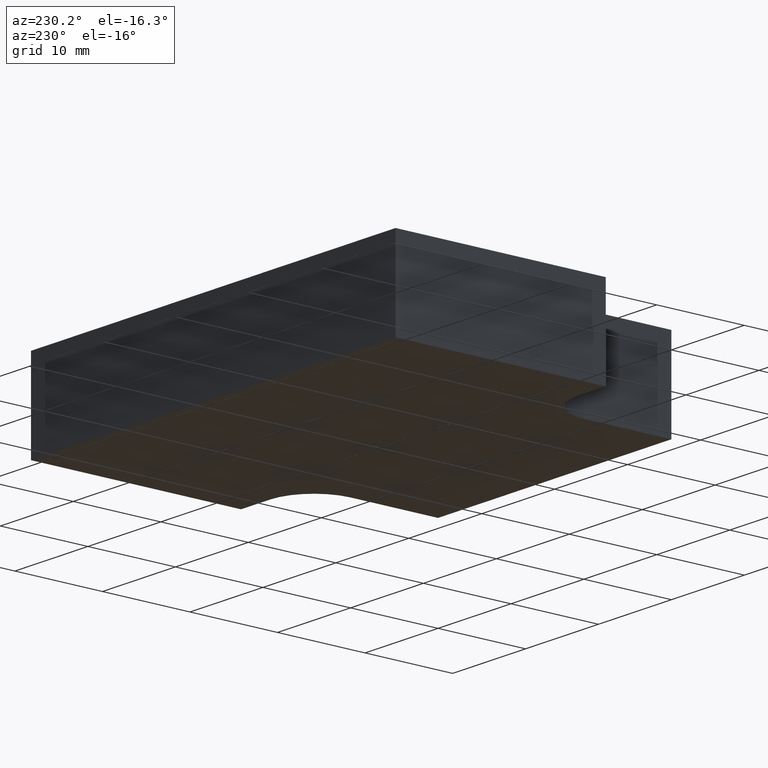
[diagram: clean part render]
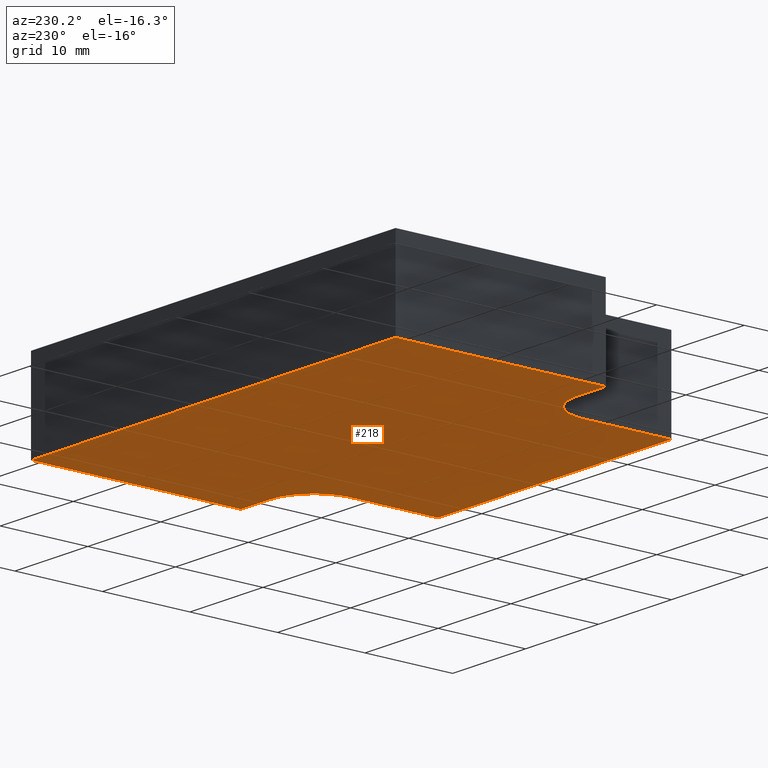
[diagram: same view with one face highlighted and labeled with its STEP entity id]
A machine part, auxiliary view. The second image highlights one B-rep face of the part: STEP entity #218.
In plain terms, the highlighted planar face has unit normal (0, 0, 1).
Its self-contained STEP definition (entity closure, byte-faithful):
#18=FACE_OUTER_BOUND('',#30,.T.);
#30=EDGE_LOOP('',(#148,#149,#150,#151,#152,#153,#154,#155,#156,#157));
#42=CIRCLE('',#254,5.);
#43=CIRCLE('',#255,5.);
#46=LINE('',#333,#72);
#47=LINE('',#335,#73);
#48=LINE('',#337,#74);
#49=LINE('',#339,#75);
#50=LINE('',#343,#76);
#51=LINE('',#345,#77);
#52=LINE('',#347,#78);
#53=LINE('',#350,#79);
#72=VECTOR('',#273,10.);
#73=VECTOR('',#274,10.);
#74=VECTOR('',#275,10.);
#75=VECTOR('',#276,10.);
#76=VECTOR('',#279,10.);
#77=VECTOR('',#280,10.);
#78=VECTOR('',#281,10.);
#79=VECTOR('',#284,10.);
#98=VERTEX_POINT('',#331);
#99=VERTEX_POINT('',#332);
#100=VERTEX_POINT('',#334);
#101=VERTEX_POINT('',#336);
#102=VERTEX_POINT('',#338);
#103=VERTEX_POINT('',#340);
#104=VERTEX_POINT('',#342);
#105=VERTEX_POINT('',#344);
#106=VERTEX_POINT('',#346);
#107=VERTEX_POINT('',#348);
#118=EDGE_CURVE('',#98,#99,#46,.T.);
#119=EDGE_CURVE('',#100,#98,#47,.T.);
#120=EDGE_CURVE('',#101,#100,#48,.T.);
#121=EDGE_CURVE('',#102,#101,#49,.T.);
#122=EDGE_CURVE('',#103,#102,#42,.T.);
#123=EDGE_CURVE('',#104,#103,#50,.T.);
#124=EDGE_CURVE('',#105,#104,#51,.T.);
#125=EDGE_CURVE('',#106,#105,#52,.T.);
#126=EDGE_CURVE('',#107,#106,#43,.T.);
#127=EDGE_CURVE('',#99,#107,#53,.T.);
#148=ORIENTED_EDGE('',*,*,#118,.F.);
#149=ORIENTED_EDGE('',*,*,#119,.F.);
#150=ORIENTED_EDGE('',*,*,#120,.F.);
#151=ORIENTED_EDGE('',*,*,#121,.F.);
#152=ORIENTED_EDGE('',*,*,#122,.F.);
#153=ORIENTED_EDGE('',*,*,#123,.F.);
#154=ORIENTED_EDGE('',*,*,#124,.F.);
#155=ORIENTED_EDGE('',*,*,#125,.F.);
#156=ORIENTED_EDGE('',*,*,#126,.F.);
#157=ORIENTED_EDGE('',*,*,#127,.F.);
#208=PLANE('',#253);
#218=ADVANCED_FACE('',(#18),#208,.F.);
#253=AXIS2_PLACEMENT_3D('',#330,#271,#272);
#254=AXIS2_PLACEMENT_3D('',#341,#277,#278);
#255=AXIS2_PLACEMENT_3D('',#349,#282,#283);
#271=DIRECTION('center_axis',(0.,0.,1.));
#272=DIRECTION('ref_axis',(1.,0.,0.));
#273=DIRECTION('',(0.,-1.,0.));
#274=DIRECTION('',(-1.,1.77635683940025E-16,0.));
#275=DIRECTION('',(0.,1.,0.));
#276=DIRECTION('',(1.,0.,0.));
#277=DIRECTION('center_axis',(0.,0.,-1.));
#278=DIRECTION('ref_axis',(-8.88178419700125E-16,1.,0.));
#279=DIRECTION('',(2.22044604925031E-16,1.,0.));
#280=DIRECTION('',(1.,-1.22464679914735E-16,0.));
#281=DIRECTION('',(2.22044604925031E-16,-1.,0.));
#282=DIRECTION('center_axis',(0.,0.,-1.));
#283=DIRECTION('ref_axis',(1.,2.22044604925031E-16,0.));
#284=DIRECTION('',(1.,0.,0.));
#330=CARTESIAN_POINT('Origin',(0.,21.1389886801068,-5.));
#331=CARTESIAN_POINT('',(-25.,39.,-5.));
#332=CARTESIAN_POINT('',(-25.,15.,-5.));
#333=CARTESIAN_POINT('',(-25.,15.,-5.));
#334=CARTESIAN_POINT('',(25.,39.,-5.));
#335=CARTESIAN_POINT('',(-25.,39.,-5.));
#336=CARTESIAN_POINT('',(25.,15.,-5.));
#337=CARTESIAN_POINT('',(25.,39.,-5.));
#338=CARTESIAN_POINT('',(21.,15.,-5.));
#339=CARTESIAN_POINT('',(25.,15.,-5.));
#340=CARTESIAN_POINT('',(16.,10.,-5.));
#341=CARTESIAN_POINT('Origin',(21.,10.,-5.));
#342=CARTESIAN_POINT('',(16.,-9.97995764079477E-16,-5.));
#343=CARTESIAN_POINT('',(16.,10.,-5.));
#344=CARTESIAN_POINT('',(-16.,-9.97995764079477E-16,-5.));
#345=CARTESIAN_POINT('',(16.,-9.97995764079477E-16,-5.));
#346=CARTESIAN_POINT('',(-16.,10.,-5.));
#347=CARTESIAN_POINT('',(-16.,-9.97995764079477E-16,-5.));
#348=CARTESIAN_POINT('',(-21.,15.,-5.));
#349=CARTESIAN_POINT('Origin',(-21.,10.,-5.));
#350=CARTESIAN_POINT('',(-21.,15.,-5.));